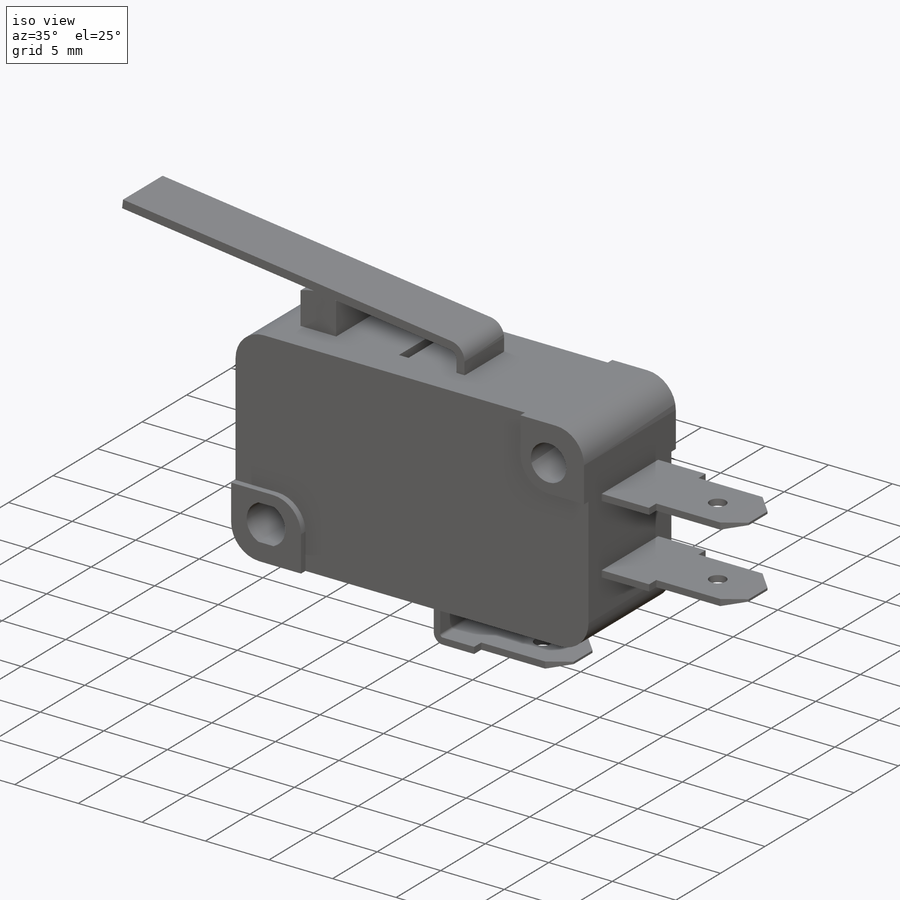
[diagram: iso view]
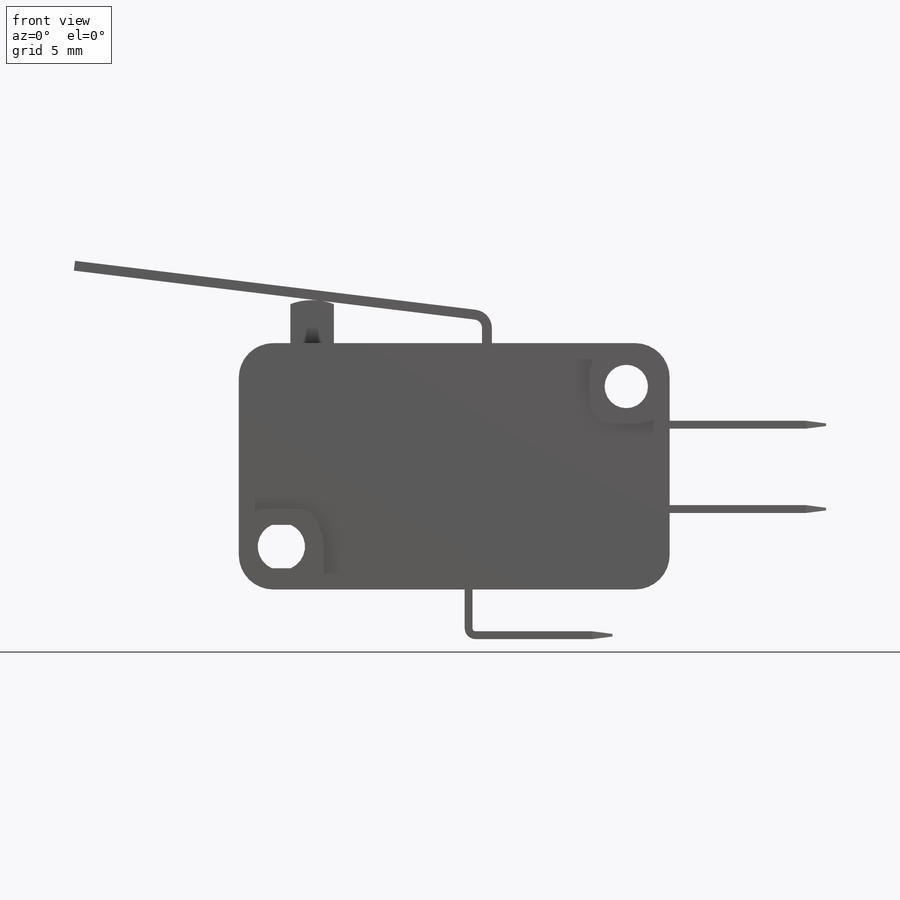
[diagram: front view]
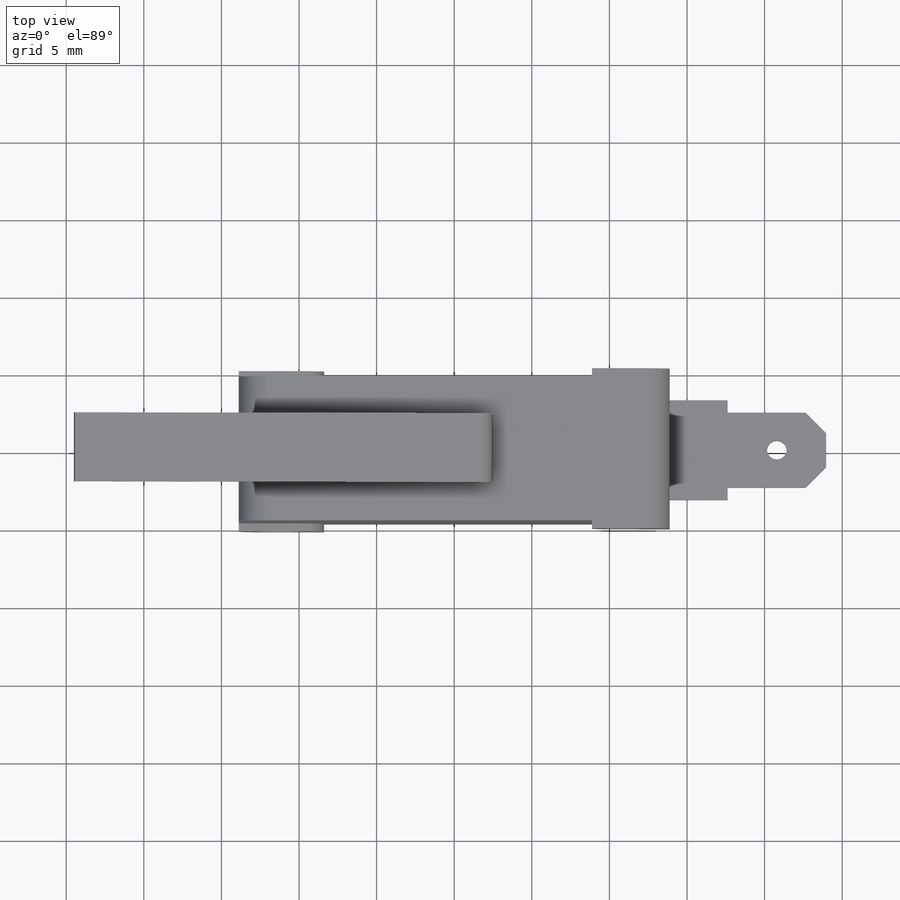
[diagram: top view]
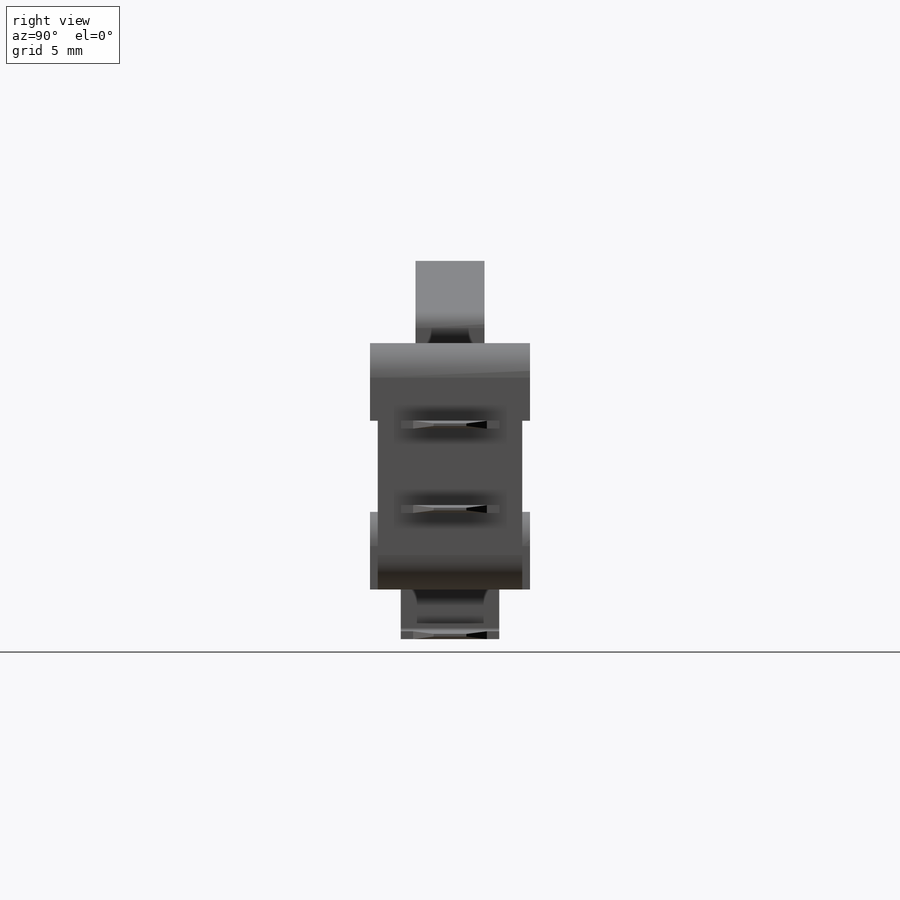
[diagram: right view]
SOLIDWORKS PART (.sldprt)
format: sldprt  version: not decoded by parser v0  size: 418,304 bytes
history: native  units: mm
features: sketch x8, extrude x4, cut_extrude x4, fillet x2, material x1, mirror x1, pattern_linear x1, move_body x1 + 1 further entry (+19 scaffold rows collapsed; 3 parser-record rows omitted)
feature tree (45):
  scaffold x19  (default folders/planes/origin — collapsed)
  material  "Material <not specified>"
  sketch  "Sketch1"  dims[c1.D3=2.794mm c1.D5=3.048mm c1.D7=1.6002mm c1.D8=1.6002mm c1.D9=2.9464mm c1.D6=3.1mm c1.D1=27.7622mm c1.D2=15.875mm c1.D4=2.794mm c2.D6=2.794mm c2.D7=22.225mm c2.D8=10.3124mm c2.D9=2.794mm c3.D6=2.794mm]
  extrude  "Extrude1"  Depth=10.31mm
  fillet  "Fillet1"  Radius=2.2225mm
  sketch  "Sketch2"  dims[c1.D1=1.6002mm c1.D3=2.9464mm c1.D4=4.0mm c2.D1=14.6812mm c2.D2=2.8mm c2.D3=20.2438mm c2.D5=3.175mm c2.D6=~14.814276mm c2.D7=~13.74407mm c2.D8=~13.74407mm c3.D1=14.6812mm c3.D6=1.1938mm]
  extrude  "Extrude2"  Depth=4.2mm
  sketch  "Sketch3"  dims[D2=9.017mm D3=4.4958mm D4=0.762mm D1=0.0254mm]
  cut_extrude  "Cut-Extrude1"  Depth=2mm
  sketch  "Sketch4"  dims[D1=5.0mm D2=5.5mm D3=5.0mm]
  cut_extrude  "Cut-Extrude2"  Depth=0.5mm
  mirror  "Mirror1"
  sketch  "Sketch5"  dims[c1.D1=1.6002mm c1.D4=2.9464mm c1.D5=0.2mm c2.D1=11.811mm c2.D2=2.6924mm c2.D3=0.508mm c2.D4=0.889mm c2.D6=19.0754mm]
  extrude  "Extrude3"  Depth=6.35mm
  sketch  "Sketch6"  dims[c1.D1=1.27mm c1.D2=3.175mm c1.D3=4.7498mm c1.D4=~2.171481mm c2.D4=45.0deg c2.D5=6.35mm]
  cut_extrude  "Cut-Extrude3"  [1 undecoded]
  sketch  "Sketch8"  dims[c1.D3=1.27mm c1.D1=4.7498mm c1.D2=6.35mm c1.D4=3.175mm c1.D5=6.35mm c1.D6=10.0838mm c1.D7=~1.351599mm c2.D7=135.0deg]
  extrude  "Extrude4"  Depth=0.508mm
  pattern_linear  "LPattern1"  Count1=2 Count2=1 Spacing1=5.4356mm Spacing2=50mm
  sketch  "Sketch7"
  cut_extrude  "Cut-Extrude4"  [1 undecoded]
  "Lever2"
  parser-record x3  (decoder bookkeeping rows leaked as tree rows — omitted from the tree; the rows remain in map.json)
  move_body  "Body-Move/Copy2"
  fillet  "<Lever2>-<Extrude5>"  Radius=14.2748mm hex flats=14.2748mm hex flats/2=7.366mm
decode coverage: 16 of 21 modeling features carry decoded parameters; 1 rows unclassified (native names shown)
note: ~ marks probable driven/reference dimensions
note: 2 parameter values undecoded
note: suppression state not decoded; provenance and decode notes live in map.json
